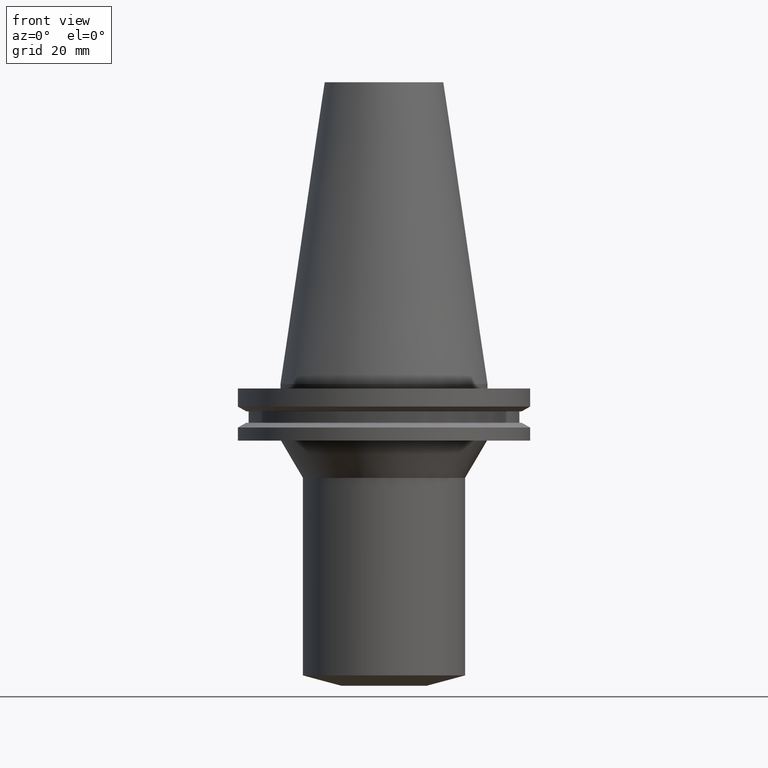
[diagram: clean part render]
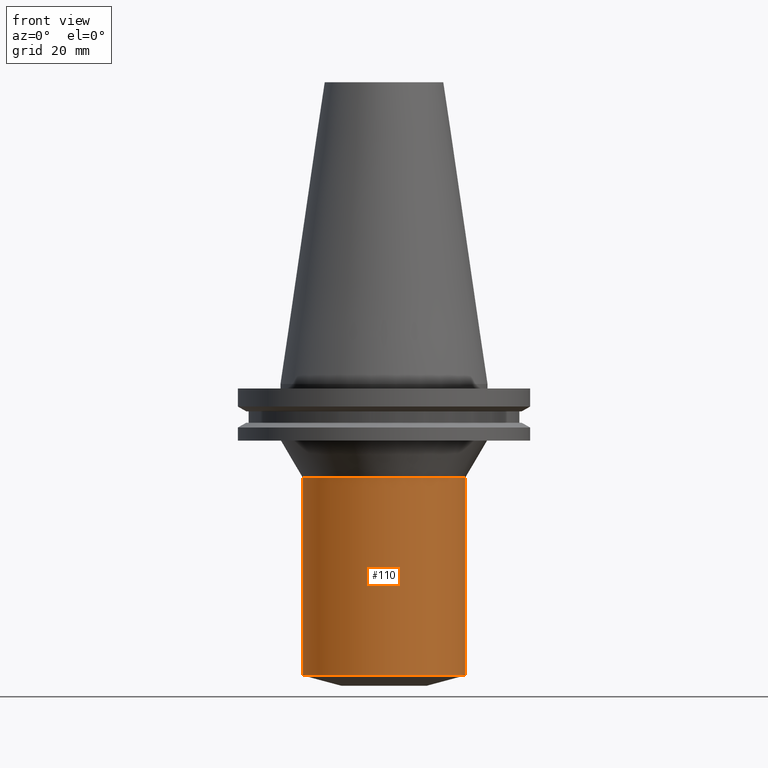
[diagram: same view with one face highlighted and labeled with its STEP entity id]
A machine part, front view. The second image highlights one B-rep face of the part: STEP entity #110.
In plain terms, the highlighted cylindrical surface (bore or boss wall) has radius 27.5 mm, axis along (0, 0, -1).
Its self-contained STEP definition (entity closure, byte-faithful):
#110=ADVANCED_FACE('Unnamed[1]',(#238,#239),#240,.T.);
#120=EDGE_CURVE('Unnamed[1]',#254,#254,#255,.T.);
#133=EDGE_CURVE('Unnamed[1]',#273,#273,#274,.T.);
#238=FACE_BOUND('',#392,.T.);
#239=FACE_BOUND('',#393,.T.);
#240=CYLINDRICAL_SURFACE('',#394,27.4999999999373);
#254=VERTEX_POINT('',#412);
#255=CIRCLE('',#413,27.4999999997934);
#273=VERTEX_POINT('',#435);
#274=CIRCLE('',#436,27.5000000000812);
#392=EDGE_LOOP('',(#538));
#393=EDGE_LOOP('',(#539));
#394=AXIS2_PLACEMENT_3D('',#540,#541,#542);
#412=CARTESIAN_POINT('',(6.00791271112677E-015,27.4999999997934,-98.1166604985162));
#413=AXIS2_PLACEMENT_3D('',#557,#558,#559);
#435=CARTESIAN_POINT('',(1.93494194266097E-015,27.5000000000812,-31.6000000001331));
#436=AXIS2_PLACEMENT_3D('',#576,#577,#578);
#538=ORIENTED_EDGE('',*,*,#120,.F.);
#539=ORIENTED_EDGE('',*,*,#133,.T.);
#540=CARTESIAN_POINT('',(3.97142732689387E-015,7.94285465378773E-015,-64.8583302493246));
#541=DIRECTION('',(6.12323399573677E-017,1.22464679914786E-016,-1.0));
#542=DIRECTION('',(-1.23259516440803E-032,1.0,1.22464679914786E-016));
#557=CARTESIAN_POINT('',(6.00791271112677E-015,1.20158254222535E-014,-98.1166604985162));
#558=DIRECTION('',(6.12323399573677E-017,1.22464679914722E-016,-1.0));
#559=DIRECTION('',(-1.23259516440796E-032,1.0,1.22464679914722E-016));
#576=CARTESIAN_POINT('',(1.93494194266097E-015,3.86988388532193E-015,-31.6000000001331));
#577=DIRECTION('',(6.12323399573677E-017,1.22464679914733E-016,-1.0));
#578=DIRECTION('',(-1.23259516440811E-032,1.0,1.22464679914733E-016));